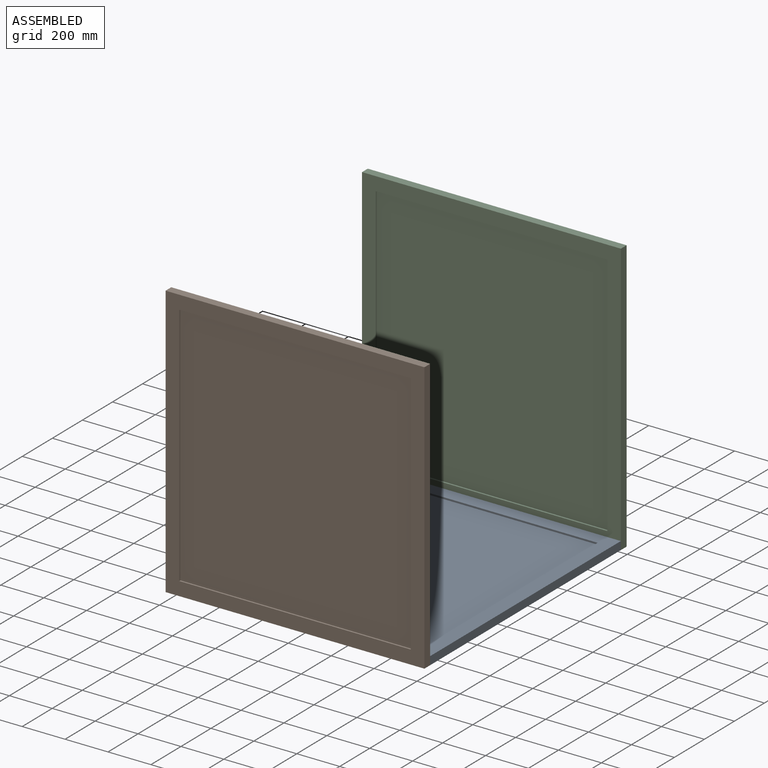
[diagram: assembled view]
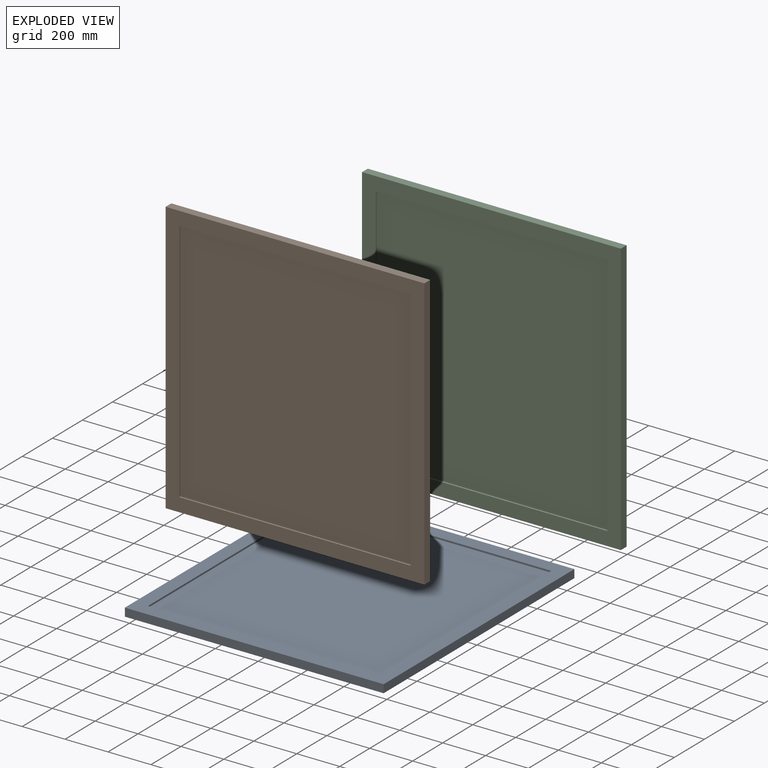
[diagram: exploded view]
GUIDED TOUR — MATED ASSEMBLY WITH SUBASSEMBLIES (Onshape document 404972811c8fb933fd3bb6b1, AutoMate assembly 404972811c8fb933fd3bb6b1_041af4c6ded8f448869e7025_c37ba7de317af0f1ff9ef1fa_default)

This assembly has 18 component occurrences arranged in 3 top-level units: 0 individual components plus 3 subassemblies (S0, S1, S2). The tour has two levels: first the top level, where each subassembly is treated as one rigid unit; then each subassembly is toured internally in its own section (nesting deeper than one subassembly level is flattened into its subassembly's section).

Components are labeled P0..P17 across the whole record; subassembly units are labeled S0..S2. A mate is a constraint between two units; its type names the relative motion it leaves free:
  PLANAR — leaves sliding in the plane through the listed point (normal = the listed direction) and rotation about that normal free.
Axis/direction vectors are unit vectors and 'through' points are millimeter coordinates, both in the assembly's world frame.

TOP-LEVEL MATES (between units; each subassembly's internal mates are listed in its own section)
  1. PLANAR "Planar 3": S1 <-> S0, direction (0.000, 0.000, -1.000) through (-804.08, -1330.18, 160.51) mm
  2. PLANAR "Planar 5": S0 <-> S2, direction (0.000, 1.000, 0.000) through (-804.08, -41.13, 179.56) mm
  3. PLANAR "Planar 4": S0 <-> S1, direction (0.000, -1.000, 0.000) through (-804.08, -1311.13, 179.56) mm
  4. PLANAR "Planar 1": S0 <-> S2, direction (1.000, 0.000, 0.000) through (-200.83, -676.13, 179.56) mm
  5. PLANAR "Planar 2": S0 <-> S1, direction (1.000, 0.000, 0.000) through (-200.83, -676.13, 179.56) mm
  6. PLANAR "Planar 6": S2 <-> S0, direction (0.000, 0.000, -1.000) through (-804.08, -22.08, 160.51) mm

TOP-LEVEL ASSEMBLY ORDER
  1. S2 — the base component [order verified]
  2. S0 [order verified]
  3. S1 [order verified]
Order-tag legend:
  [order verified] — this step's position reverses a verified removal order: the component was checked to insert without passing through the ones already placed.

Of the 18 component occurrences, 18 carry the full construction recipe — the FeatureScript program that regenerates the part's solid from scratch; the rest are supplied as boundary geometry only. Each toured unit is shown spotlighted twice — assembled, then exploded with a leader line back to its socket (green = recipe-attached component, orange = geometry-only, blue = subassembly unit; the rest desaturated gray).
NOTE — document 2 of 3 of this assembly tour. The two overview renders and the header above are repeated from document 1; the component sections below continue where the previous document stopped.
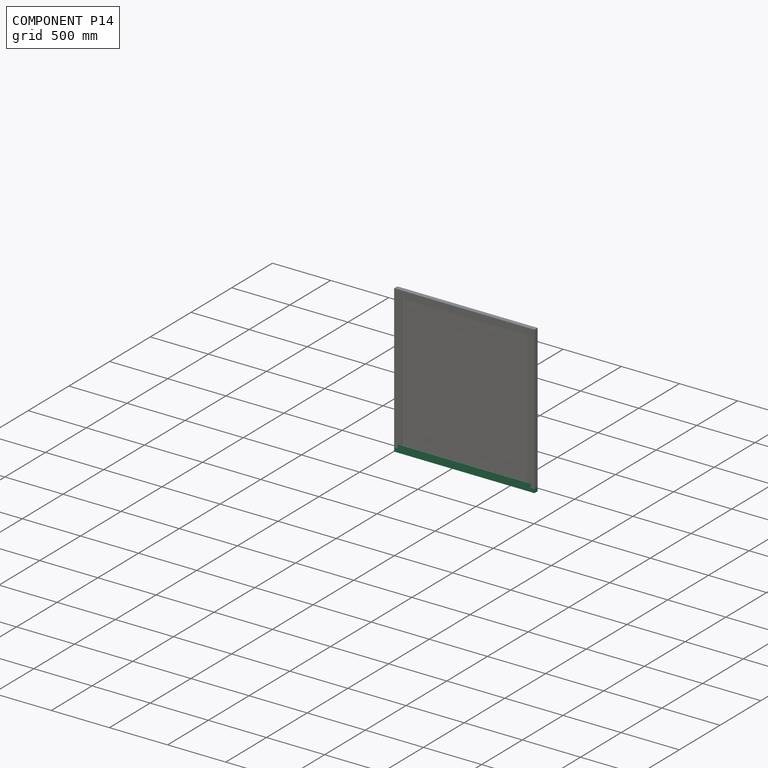
[diagram: component P14 — assembled]
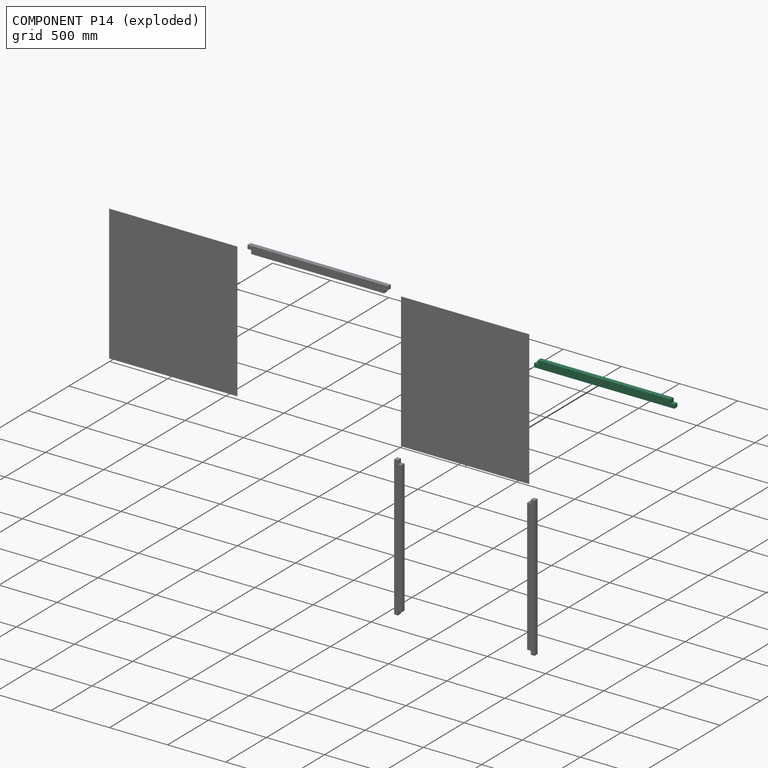
[diagram: component P14 — exploded]
COMPONENT P14 — recipe-attached (CADFS 00307400, mesh-verified: the recipe's output STEP matches this component's geometry to below the mesh-comparison resolution (tessellation chordal tolerance ~1.81 mm)).
Held by: PLANAR mate "Planar 3" to P5; PLANAR mate "Planar 8" to P16; PLANAR mate "Planar 1" to P5; PLANAR mate "Planar 2" to P5; PLANAR mate "Planar 8" to P16; PLANAR mate "Planar 2" to P5; PLANAR mate "Planar 3" to P5; PLANAR mate "Planar 1" to P5.
Construction recipe (FeatureScript — the CAD program that rebuilds this solid; sketch coordinates are in the units given by the * unit suffixes, e.g. mm):

FeatureScript 1511;
import(path : "onshape/std/geometry.fs", version : "1511.0");
import(path : "onshape/std/common.fs", version : "1511.0");
const mm = millimeter;
const VERTEX = EntityType.VERTEX;
const EDGE = EntityType.EDGE;
const FACE = EntityType.FACE;
const BODY = EntityType.BODY;
function v(x, y){return vector(x, y);}
function OD(order){return orderDisambiguation(order);}
function OSD(set){return originalSetDisambiguation(set);}
function TD(topology){return topologyDisambiguation(topology);}
function TDD(query){return trueDependencyDisambiguation(query);}
function sQuery(a, b, c) {return sketchEntityQuery(a, b, c);}

annotation { "Feature Type Name" : "Feature", "Feature Type Description" : "" }
export const myFeature = defineFeature(function(context is Context, id is Id, definition is map)
    precondition{}
    {
        {
            var Q0;
            Q0=qCreatedBy(makeId("Front.planeOp"),FACE);
            var sketch = newSketch(context, id + "F0", { "sketchPlane" : qUnion([Q0])});
            skLineSegment(sketch, "E0.bottom", {"start": v(19.05, -31.75) * mm, "end": v(-19.05, -31.75) * mm});
            skLineSegment(sketch, "E0.top", {"start": v(19.05, 31.75) * mm, "end": v(-19.05, 31.75) * mm});
            skLineSegment(sketch, "E0.left", {"start": v(19.05, -31.75) * mm, "end": v(19.05, 31.75) * mm});
            skLineSegment(sketch, "E0.right", {"start": v(-19.05, -31.75) * mm, "end": v(-19.05, 31.75) * mm});
            skPoint(sketch, "E0.middle", {"position": v(0, 0) * mm});
            skLineSegment(sketch, "E1.bottom", {"start": v(11.11, 21.59) * mm, "end": v(7.94, 21.59) * mm});
            skLineSegment(sketch, "E1.top", {"start": v(11.11, 31.75) * mm, "end": v(7.94, 31.75) * mm});
            skLineSegment(sketch, "E1.left", {"start": v(11.11, 21.59) * mm, "end": v(11.11, 31.75) * mm});
            skLineSegment(sketch, "E1.right", {"start": v(7.94, 21.59) * mm, "end": v(7.94, 31.75) * mm});
            skPoint(sketch, "E1.middle", {"position": v(9.53, 26.67) * mm});
            skLineSegment(sketch, "E2.bottom", {"start": v(-7.94, 21.59) * mm, "end": v(-11.11, 21.59) * mm});
            skLineSegment(sketch, "E2.top", {"start": v(-7.94, 31.75) * mm, "end": v(-11.11, 31.75) * mm});
            skLineSegment(sketch, "E2.left", {"start": v(-7.94, 21.59) * mm, "end": v(-7.94, 31.75) * mm});
            skLineSegment(sketch, "E2.right", {"start": v(-11.11, 21.59) * mm, "end": v(-11.11, 31.75) * mm});
            skPoint(sketch, "E2.middle", {"position": v(-9.53, 26.67) * mm});
            skSolve(sketch);
        }
        {
            var Q0;
            Q0=makeQuery(id+"F0.imprint","IMPRINT",FACE,{"disambiguationData":[TD([[makeQuery(id+"F0.imprint","IMPRINT",EDGE,{"derivedFrom":sQuery(id+"F0.wireOp",EDGE,"E0.bottom")}),-1.0]])]});
            extrude(context, id + "F1", {"entities" : qUnion([Q0]), "endBound" : BoundingType.SYMMETRIC, "depth" : 1206.5 * mm});
        }
        {
            var Q0;
            Q0=makeQuery(id+"F1.opExtrude","SWEPT_FACE",FACE,{"disambiguationData":[OSD([sQuery(id+"F0.wireOp",EDGE,"E0.right")])]});
            var sketch = newSketch(context, id + "F2", { "sketchPlane" : qUnion([Q0])});
            skLineSegment(sketch, "E3", {"start": v(0, 31.75) * mm, "end": v(0, -31.75) * mm, "construction": true});
            skPoint(sketch, "E3.endSnap0", {"position": v(0, -31.75) * mm});
            skLineSegment(sketch, "E4.bottom", {"start": v(603.25, 31.75) * mm, "end": v(571.5, 31.75) * mm});
            skLineSegment(sketch, "E4.top", {"start": v(603.25, 0) * mm, "end": v(571.5, 0) * mm});
            skLineSegment(sketch, "E4.left", {"start": v(603.25, 31.75) * mm, "end": v(603.25, 0) * mm});
            skLineSegment(sketch, "E4.right", {"start": v(571.5, 31.75) * mm, "end": v(571.5, 0) * mm});
            skLineSegment(sketch, "E5.MirrorCS", {"start": v(-603.25, 31.75) * mm, "end": v(-571.5, 31.75) * mm});
            skLineSegment(sketch, "E6.MirrorCS", {"start": v(-603.25, 0) * mm, "end": v(-571.5, 0) * mm});
            skLineSegment(sketch, "E7.MirrorCS", {"start": v(-603.25, 31.75) * mm, "end": v(-603.25, 0) * mm});
            skLineSegment(sketch, "E8.MirrorCS", {"start": v(-571.5, 31.75) * mm, "end": v(-571.5, 0) * mm});
            skSolve(sketch);
        }
        {
            var Q0;
            Q0 = qSketchRegion(id + "F2", true);
            extrude(context, id + "F3", {"entities" : qUnion([Q0]), "operationType" : NewBodyOperationType.REMOVE, "endBound" : BoundingType.THROUGH_ALL, "oppositeDirection" : true, "depth" : 25.4 * mm});
        }
    });
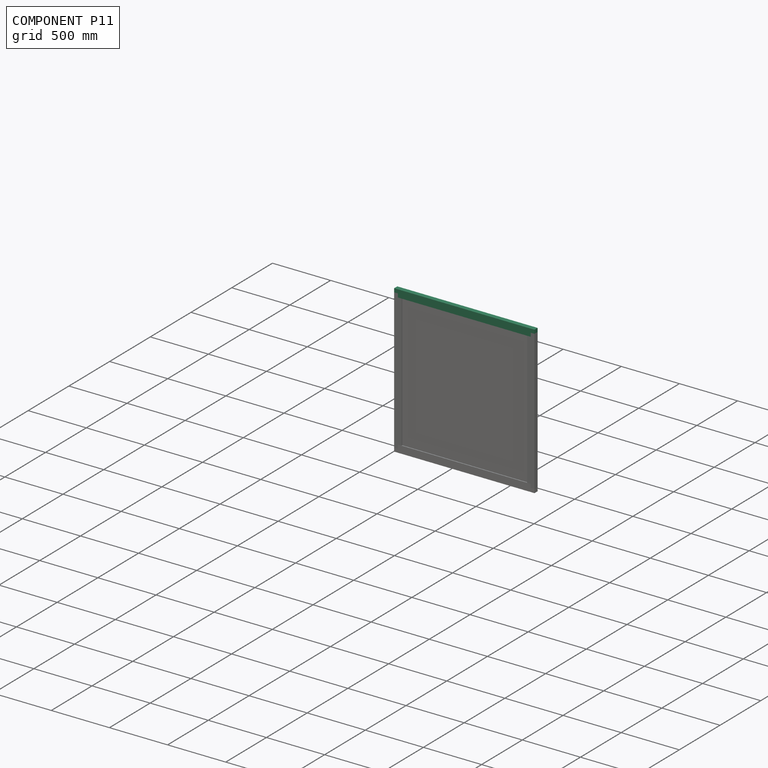
[diagram: component P11 — assembled]
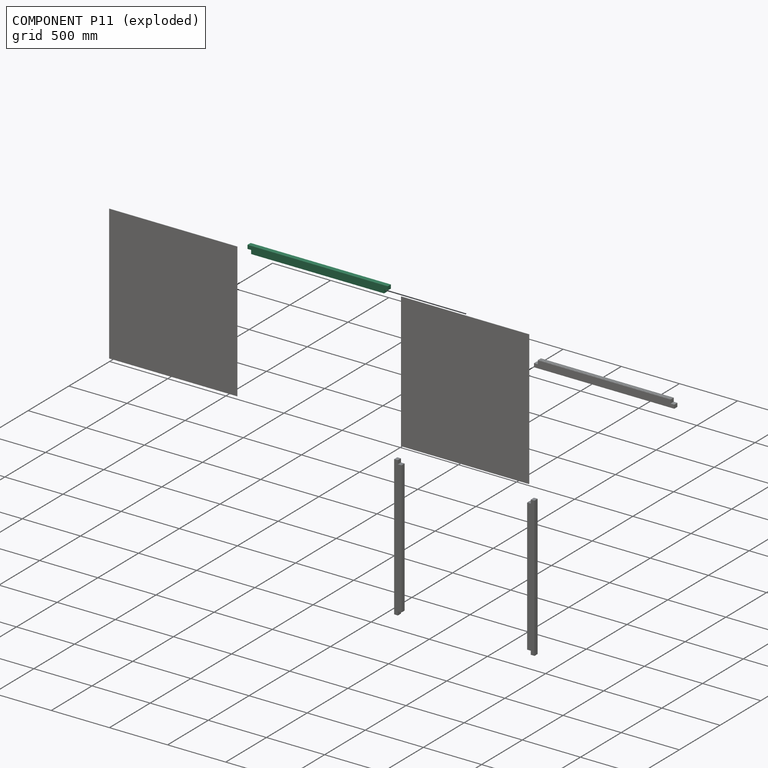
[diagram: component P11 — exploded]
COMPONENT P11 — recipe-attached (CADFS 00307400, mesh-verified: the recipe's output STEP matches this component's geometry to below the mesh-comparison resolution (tessellation chordal tolerance ~1.81 mm)).
Held by: PLANAR mate "Planar 4" to P5; PLANAR mate "Planar 6" to P5; PLANAR mate "Planar 7" to P16; PLANAR mate "Planar 10" to P2; PLANAR mate "Planar 5" to P5; PLANAR mate "Planar 9" to P16; PLANAR mate "Planar 4" to P5; PLANAR mate "Planar 7" to P16; PLANAR mate "Planar 6" to P5; PLANAR mate "Planar 9" to P16; PLANAR mate "Planar 10" to P2; PLANAR mate "Planar 5" to P5.
Construction recipe (FeatureScript — the CAD program that rebuilds this solid; sketch coordinates are in the units given by the * unit suffixes, e.g. mm):

FeatureScript 1511;
import(path : "onshape/std/geometry.fs", version : "1511.0");
import(path : "onshape/std/common.fs", version : "1511.0");
const mm = millimeter;
const VERTEX = EntityType.VERTEX;
const EDGE = EntityType.EDGE;
const FACE = EntityType.FACE;
const BODY = EntityType.BODY;
function v(x, y){return vector(x, y);}
function OD(order){return orderDisambiguation(order);}
function OSD(set){return originalSetDisambiguation(set);}
function TD(topology){return topologyDisambiguation(topology);}
function TDD(query){return trueDependencyDisambiguation(query);}
function sQuery(a, b, c) {return sketchEntityQuery(a, b, c);}

annotation { "Feature Type Name" : "Feature", "Feature Type Description" : "" }
export const myFeature = defineFeature(function(context is Context, id is Id, definition is map)
    precondition{}
    {
        {
            var Q0;
            Q0=qCreatedBy(makeId("Front.planeOp"),FACE);
            var sketch = newSketch(context, id + "F0", { "sketchPlane" : qUnion([Q0])});
            skLineSegment(sketch, "E0.bottom", {"start": v(19.05, -31.75) * mm, "end": v(-19.05, -31.75) * mm});
            skLineSegment(sketch, "E0.top", {"start": v(19.05, 31.75) * mm, "end": v(-19.05, 31.75) * mm});
            skLineSegment(sketch, "E0.left", {"start": v(19.05, -31.75) * mm, "end": v(19.05, 31.75) * mm});
            skLineSegment(sketch, "E0.right", {"start": v(-19.05, -31.75) * mm, "end": v(-19.05, 31.75) * mm});
            skPoint(sketch, "E0.middle", {"position": v(0, 0) * mm});
            skLineSegment(sketch, "E1.bottom", {"start": v(11.11, 21.59) * mm, "end": v(7.94, 21.59) * mm});
            skLineSegment(sketch, "E1.top", {"start": v(11.11, 31.75) * mm, "end": v(7.94, 31.75) * mm});
            skLineSegment(sketch, "E1.left", {"start": v(11.11, 21.59) * mm, "end": v(11.11, 31.75) * mm});
            skLineSegment(sketch, "E1.right", {"start": v(7.94, 21.59) * mm, "end": v(7.94, 31.75) * mm});
            skPoint(sketch, "E1.middle", {"position": v(9.53, 26.67) * mm});
            skLineSegment(sketch, "E2.bottom", {"start": v(-7.94, 21.59) * mm, "end": v(-11.11, 21.59) * mm});
            skLineSegment(sketch, "E2.top", {"start": v(-7.94, 31.75) * mm, "end": v(-11.11, 31.75) * mm});
            skLineSegment(sketch, "E2.left", {"start": v(-7.94, 21.59) * mm, "end": v(-7.94, 31.75) * mm});
            skLineSegment(sketch, "E2.right", {"start": v(-11.11, 21.59) * mm, "end": v(-11.11, 31.75) * mm});
            skPoint(sketch, "E2.middle", {"position": v(-9.53, 26.67) * mm});
            skSolve(sketch);
        }
        {
            var Q0;
            Q0=makeQuery(id+"F0.imprint","IMPRINT",FACE,{"disambiguationData":[TD([[makeQuery(id+"F0.imprint","IMPRINT",EDGE,{"derivedFrom":sQuery(id+"F0.wireOp",EDGE,"E0.bottom")}),-1.0]])]});
            extrude(context, id + "F1", {"entities" : qUnion([Q0]), "endBound" : BoundingType.SYMMETRIC, "depth" : 1206.5 * mm});
        }
        {
            var Q0;
            Q0=makeQuery(id+"F1.opExtrude","SWEPT_FACE",FACE,{"disambiguationData":[OSD([sQuery(id+"F0.wireOp",EDGE,"E0.right")])]});
            var sketch = newSketch(context, id + "F2", { "sketchPlane" : qUnion([Q0])});
            skLineSegment(sketch, "E3", {"start": v(0, 31.75) * mm, "end": v(0, -31.75) * mm, "construction": true});
            skPoint(sketch, "E3.endSnap0", {"position": v(0, -31.75) * mm});
            skLineSegment(sketch, "E4.bottom", {"start": v(603.25, 31.75) * mm, "end": v(571.5, 31.75) * mm});
            skLineSegment(sketch, "E4.top", {"start": v(603.25, 0) * mm, "end": v(571.5, 0) * mm});
            skLineSegment(sketch, "E4.left", {"start": v(603.25, 31.75) * mm, "end": v(603.25, 0) * mm});
            skLineSegment(sketch, "E4.right", {"start": v(571.5, 31.75) * mm, "end": v(571.5, 0) * mm});
            skLineSegment(sketch, "E5.MirrorCS", {"start": v(-603.25, 31.75) * mm, "end": v(-571.5, 31.75) * mm});
            skLineSegment(sketch, "E6.MirrorCS", {"start": v(-603.25, 0) * mm, "end": v(-571.5, 0) * mm});
            skLineSegment(sketch, "E7.MirrorCS", {"start": v(-603.25, 31.75) * mm, "end": v(-603.25, 0) * mm});
            skLineSegment(sketch, "E8.MirrorCS", {"start": v(-571.5, 31.75) * mm, "end": v(-571.5, 0) * mm});
            skSolve(sketch);
        }
        {
            var Q0;
            Q0 = qSketchRegion(id + "F2", true);
            extrude(context, id + "F3", {"entities" : qUnion([Q0]), "operationType" : NewBodyOperationType.REMOVE, "endBound" : BoundingType.THROUGH_ALL, "oppositeDirection" : true, "depth" : 25.4 * mm});
        }
    });
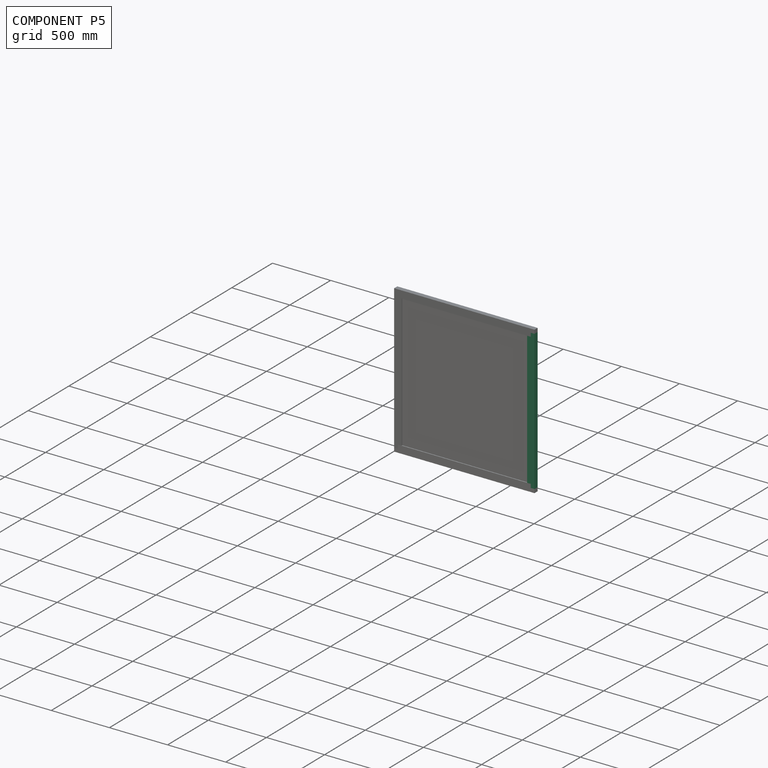
[diagram: component P5 — assembled]
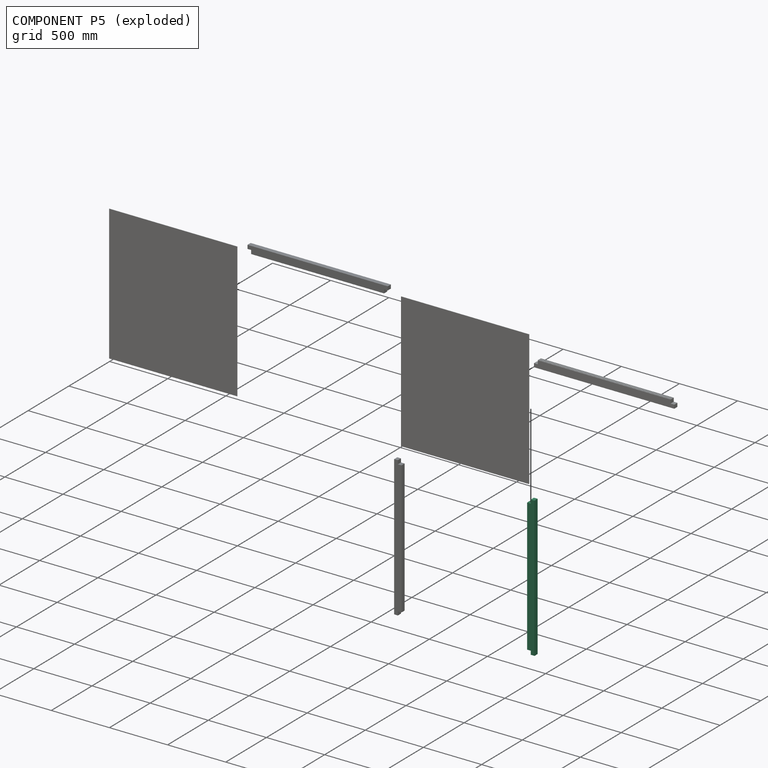
[diagram: component P5 — exploded]
COMPONENT P5 — recipe-attached (CADFS 00307400, mesh-verified: the recipe's output STEP matches this component's geometry to below the mesh-comparison resolution (tessellation chordal tolerance ~1.81 mm)).
Held by: PLANAR mate "Planar 4" to P11; PLANAR mate "Planar 6" to P11; PLANAR mate "Planar 3" to P14; PLANAR mate "Planar 14" to P2; PLANAR mate "Planar 15" to P6; PLANAR mate "Planar 5" to P11; PLANAR mate "Planar 1" to P14; PLANAR mate "Planar 2" to P14; PLANAR mate "Planar 4" to P11; PLANAR mate "Planar 14" to P2; PLANAR mate "Planar 15" to P6; PLANAR mate "Planar 6" to P11; PLANAR mate "Planar 2" to P14; PLANAR mate "Planar 3" to P14; PLANAR mate "Planar 1" to P14; PLANAR mate "Planar 5" to P11.
Construction recipe (FeatureScript — the CAD program that rebuilds this solid; sketch coordinates are in the units given by the * unit suffixes, e.g. mm):

FeatureScript 1511;
import(path : "onshape/std/geometry.fs", version : "1511.0");
import(path : "onshape/std/common.fs", version : "1511.0");
const mm = millimeter;
const VERTEX = EntityType.VERTEX;
const EDGE = EntityType.EDGE;
const FACE = EntityType.FACE;
const BODY = EntityType.BODY;
function v(x, y){return vector(x, y);}
function OD(order){return orderDisambiguation(order);}
function OSD(set){return originalSetDisambiguation(set);}
function TD(topology){return topologyDisambiguation(topology);}
function TDD(query){return trueDependencyDisambiguation(query);}
function sQuery(a, b, c) {return sketchEntityQuery(a, b, c);}

annotation { "Feature Type Name" : "Feature", "Feature Type Description" : "" }
export const myFeature = defineFeature(function(context is Context, id is Id, definition is map)
    precondition{}
    {
        {
            var Q0;
            Q0=qCreatedBy(makeId("Front.planeOp"),FACE);
            var sketch = newSketch(context, id + "F0", { "sketchPlane" : qUnion([Q0])});
            skLineSegment(sketch, "E0.bottom", {"start": v(19.05, -31.75) * mm, "end": v(-19.05, -31.75) * mm});
            skLineSegment(sketch, "E0.top", {"start": v(19.05, 31.75) * mm, "end": v(-19.05, 31.75) * mm});
            skLineSegment(sketch, "E0.left", {"start": v(19.05, -31.75) * mm, "end": v(19.05, 31.75) * mm});
            skLineSegment(sketch, "E0.right", {"start": v(-19.05, -31.75) * mm, "end": v(-19.05, 31.75) * mm});
            skPoint(sketch, "E0.middle", {"position": v(0, 0) * mm});
            skLineSegment(sketch, "E1.bottom", {"start": v(11.11, 21.59) * mm, "end": v(7.94, 21.59) * mm});
            skLineSegment(sketch, "E1.top", {"start": v(11.11, 31.75) * mm, "end": v(7.94, 31.75) * mm});
            skLineSegment(sketch, "E1.left", {"start": v(11.11, 21.59) * mm, "end": v(11.11, 31.75) * mm});
            skLineSegment(sketch, "E1.right", {"start": v(7.94, 21.59) * mm, "end": v(7.94, 31.75) * mm});
            skPoint(sketch, "E1.middle", {"position": v(9.53, 26.67) * mm});
            skLineSegment(sketch, "E2.bottom", {"start": v(-7.94, 21.59) * mm, "end": v(-11.11, 21.59) * mm});
            skLineSegment(sketch, "E2.top", {"start": v(-7.94, 31.75) * mm, "end": v(-11.11, 31.75) * mm});
            skLineSegment(sketch, "E2.left", {"start": v(-7.94, 21.59) * mm, "end": v(-7.94, 31.75) * mm});
            skLineSegment(sketch, "E2.right", {"start": v(-11.11, 21.59) * mm, "end": v(-11.11, 31.75) * mm});
            skPoint(sketch, "E2.middle", {"position": v(-9.53, 26.67) * mm});
            skSolve(sketch);
        }
        {
            var Q0;
            Q0=makeQuery(id+"F0.imprint","IMPRINT",FACE,{"disambiguationData":[TD([[makeQuery(id+"F0.imprint","IMPRINT",EDGE,{"derivedFrom":sQuery(id+"F0.wireOp",EDGE,"E0.bottom")}),-1.0]])]});
            extrude(context, id + "F1", {"entities" : qUnion([Q0]), "endBound" : BoundingType.SYMMETRIC, "depth" : 1206.5 * mm});
        }
        {
            var Q0;
            Q0=makeQuery(id+"F1.opExtrude","SWEPT_FACE",FACE,{"disambiguationData":[OSD([sQuery(id+"F0.wireOp",EDGE,"E0.right")])]});
            var sketch = newSketch(context, id + "F2", { "sketchPlane" : qUnion([Q0])});
            skLineSegment(sketch, "E3", {"start": v(0, 31.75) * mm, "end": v(0, -31.75) * mm, "construction": true});
            skPoint(sketch, "E3.endSnap0", {"position": v(0, -31.75) * mm});
            skLineSegment(sketch, "E4.bottom", {"start": v(603.25, 31.75) * mm, "end": v(571.5, 31.75) * mm});
            skLineSegment(sketch, "E4.top", {"start": v(603.25, 0) * mm, "end": v(571.5, 0) * mm});
            skLineSegment(sketch, "E4.left", {"start": v(603.25, 31.75) * mm, "end": v(603.25, 0) * mm});
            skLineSegment(sketch, "E4.right", {"start": v(571.5, 31.75) * mm, "end": v(571.5, 0) * mm});
            skLineSegment(sketch, "E5.MirrorCS", {"start": v(-603.25, 31.75) * mm, "end": v(-571.5, 31.75) * mm});
            skLineSegment(sketch, "E6.MirrorCS", {"start": v(-603.25, 0) * mm, "end": v(-571.5, 0) * mm});
            skLineSegment(sketch, "E7.MirrorCS", {"start": v(-603.25, 31.75) * mm, "end": v(-603.25, 0) * mm});
            skLineSegment(sketch, "E8.MirrorCS", {"start": v(-571.5, 31.75) * mm, "end": v(-571.5, 0) * mm});
            skSolve(sketch);
        }
        {
            var Q0;
            Q0 = qSketchRegion(id + "F2", true);
            extrude(context, id + "F3", {"entities" : qUnion([Q0]), "operationType" : NewBodyOperationType.REMOVE, "endBound" : BoundingType.THROUGH_ALL, "oppositeDirection" : true, "depth" : 25.4 * mm});
        }
    });
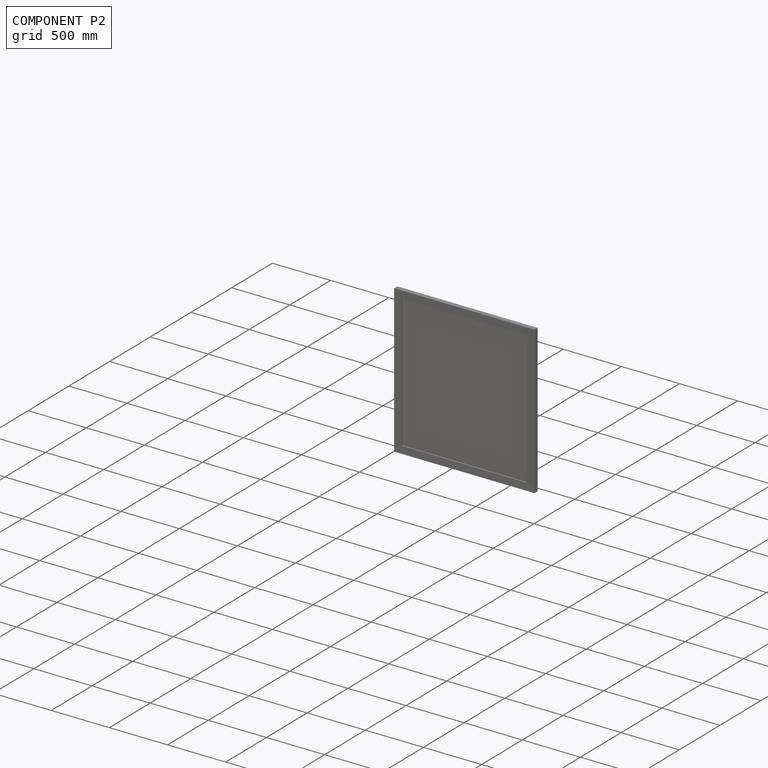
[diagram: component P2 — assembled]
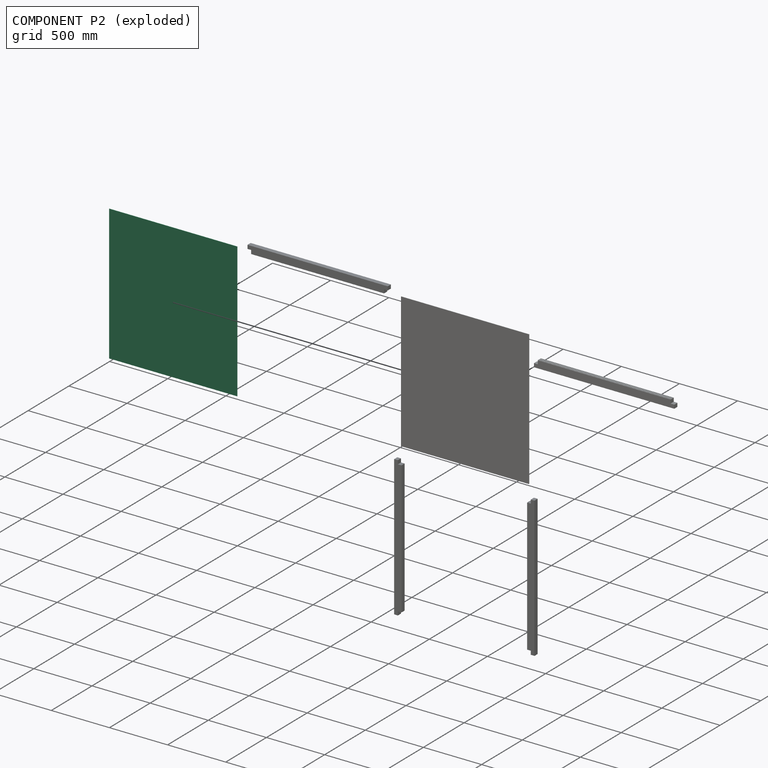
[diagram: component P2 — exploded]
COMPONENT P2 — recipe-attached (CADFS 00307407, mesh-verified: the recipe's output STEP matches this component's geometry to below the mesh-comparison resolution (tessellation chordal tolerance ~2.4 mm)).
Held by: PLANAR mate "Planar 11" to P6; PLANAR mate "Planar 12" to P16; PLANAR mate "Planar 10" to P11; PLANAR mate "Planar 14" to P5; PLANAR mate "Planar 14" to P5; PLANAR mate "Planar 10" to P11; PLANAR mate "Planar 11" to P6; PLANAR mate "Planar 12" to P16.
Construction recipe (FeatureScript — the CAD program that rebuilds this solid; sketch coordinates are in the units given by the * unit suffixes, e.g. mm):

FeatureScript 1511;
import(path : "onshape/std/geometry.fs", version : "1511.0");
import(path : "onshape/std/common.fs", version : "1511.0");
const mm = millimeter;
const VERTEX = EntityType.VERTEX;
const EDGE = EntityType.EDGE;
const FACE = EntityType.FACE;
const BODY = EntityType.BODY;
function v(x, y){return vector(x, y);}
function OD(order){return orderDisambiguation(order);}
function OSD(set){return originalSetDisambiguation(set);}
function TD(topology){return topologyDisambiguation(topology);}
function TDD(query){return trueDependencyDisambiguation(query);}
function sQuery(a, b, c) {return sketchEntityQuery(a, b, c);}

annotation { "Feature Type Name" : "Feature", "Feature Type Description" : "" }
export const myFeature = defineFeature(function(context is Context, id is Id, definition is map)
    precondition{}
    {
        {
            var Q0;
            Q0=qCreatedBy(makeId("Front.planeOp"),FACE);
            var sketch = newSketch(context, id + "F0", { "sketchPlane" : qUnion([Q0])});
            skLineSegment(sketch, "E0.bottom", {"start": v(581.66, 549.9) * mm, "end": v(-581.66, 549.9) * mm});
            skLineSegment(sketch, "E0.top", {"start": v(581.66, -549.9) * mm, "end": v(-581.66, -549.9) * mm});
            skLineSegment(sketch, "E0.left", {"start": v(581.66, 549.9) * mm, "end": v(581.66, -549.9) * mm});
            skLineSegment(sketch, "E0.right", {"start": v(-581.66, 549.9) * mm, "end": v(-581.66, -549.9) * mm});
            skPoint(sketch, "E0.middle", {"position": v(0, 0) * mm});
            skSolve(sketch);
        }
        {
            var Q0;
            Q0=qSketchRegion(id+"F0",true);
            extrude(context, id + "F1", {"entities" : qUnion([Q0]), "depth" : 3.17 * mm});
        }
    });
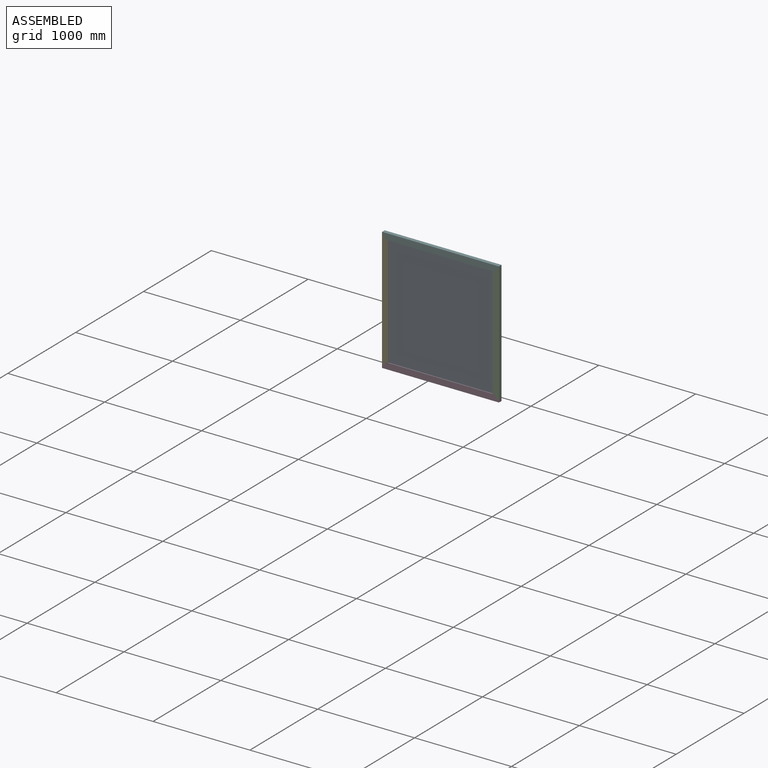
[diagram: subassembly S2 — assembled view]
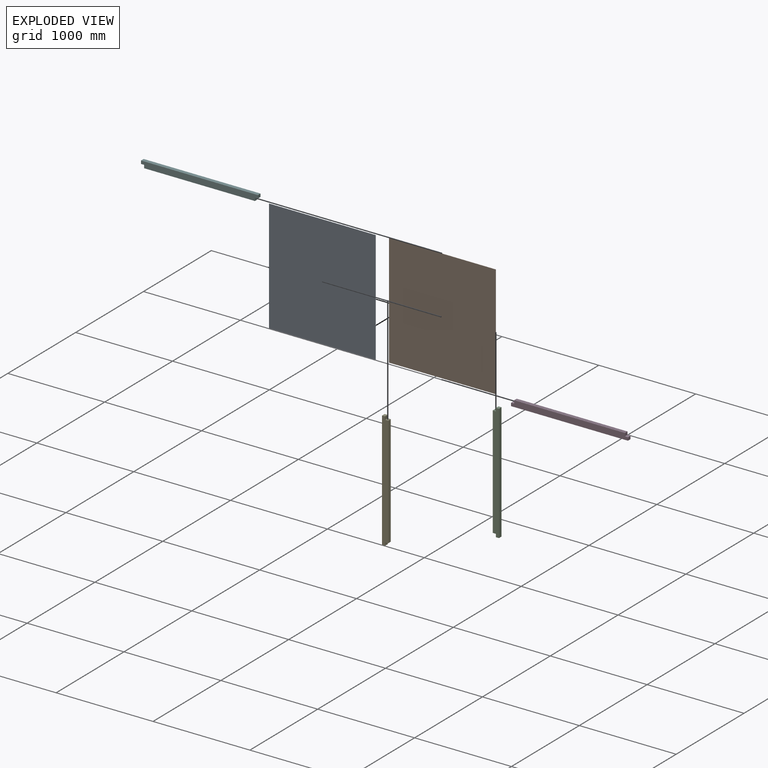
[diagram: subassembly S2 — exploded view]
SUBASSEMBLY S2 TOUR — 6 components, shown here in isolation at its own camera.

INTERNAL MATES
  1. PLANAR "Planar 4": P13 <-> P8, direction (1.000, 0.000, 0.000) through (-200.83, -22.08, 1414.63) mm
  2. PLANAR "Planar 11": P4 <-> P7, direction (0.000, 0.000, 1.000) through (-804.08, -31.61, 1377.17) mm
  3. PLANAR "Planar 13": P10 <-> P4, direction (0.000, -1.000, 0.000) through (-1348.91, -30.02, 795.51) mm
  4. PLANAR "Planar 6": P13 <-> P8, direction (0.000, 0.000, -1.000) through (-216.70, -22.08, 1398.76) mm
  5. PLANAR "Planar 3": P9 <-> P8, direction (0.000, -1.000, 0.000) through (-804.08, -41.13, 191.83) mm
  6. PLANAR "Planar 7": P10 <-> P13, direction (-1.000, 0.000, 0.000) through (-1407.33, -22.08, 795.51) mm
  7. PLANAR "Planar 12": P7 <-> P10, direction (0.000, 1.000, 0.000) through (-804.08, -10.97, 213.85) mm
  8. PLANAR "Planar 10": P7 <-> P13, direction (0.000, 0.000, 1.000) through (-804.08, -12.56, 1377.17) mm
  9. PLANAR "Planar 14": P7 <-> P8, direction (1.000, 0.000, 0.000) through (-254.17, -12.56, 795.51) mm
  10. PLANAR "Planar 15": P8 <-> P4, direction (-1.000, 0.000, 0.000) through (-254.17, -31.61, 795.51) mm
  11. PLANAR "Planar 8": P10 <-> P9, direction (0.000, 0.000, -1.000) through (-1391.45, -22.08, 192.26) mm
  12. PLANAR "Planar 5": P8 <-> P13, direction (0.000, -1.000, 0.000) through (-232.15, -41.13, 795.51) mm
  13. PLANAR "Planar 9": P13 <-> P10, direction (0.000, 1.000, 0.000) through (-804.08, -3.03, 1399.19) mm
  14. PLANAR "Planar 1": P9 <-> P8, direction (0.000, 0.000, 1.000) through (-216.70, -22.08, 192.26) mm
  15. PLANAR "Planar 2": P9 <-> P8, direction (1.000, 0.000, 0.000) through (-200.83, -22.08, 176.38) mm
  16. PLANAR "Planar 7": P10 <-> P13, direction (-1.000, 0.000, 0.000) through (-1407.33, -22.08, 795.51) mm
  17. PLANAR "Planar 9": P13 <-> P10, direction (0.000, 1.000, 0.000) through (-804.08, -3.03, 1399.19) mm
  18. PLANAR "Planar 1": P9 <-> P8, direction (0.000, 0.000, 1.000) through (-216.70, -22.08, 192.26) mm
  19. PLANAR "Planar 13": P10 <-> P4, direction (0.000, -1.000, 0.000) through (-1348.91, -30.02, 795.51) mm
  20. PLANAR "Planar 15": P8 <-> P4, direction (-1.000, 0.000, 0.000) through (-254.17, -31.61, 795.51) mm
  21. PLANAR "Planar 3": P9 <-> P8, direction (0.000, -1.000, 0.000) through (-804.08, -41.13, 191.83) mm
  22. PLANAR "Planar 11": P4 <-> P7, direction (0.000, 0.000, 1.000) through (-804.08, -31.61, 1377.17) mm
  23. PLANAR "Planar 8": P10 <-> P9, direction (0.000, 0.000, -1.000) through (-1391.45, -22.08, 192.26) mm
  24. PLANAR "Planar 10": P7 <-> P13, direction (0.000, 0.000, 1.000) through (-804.08, -12.56, 1377.17) mm
  25. PLANAR "Planar 5": P8 <-> P13, direction (0.000, -1.000, 0.000) through (-232.15, -41.13, 795.51) mm
  26. PLANAR "Planar 6": P13 <-> P8, direction (0.000, 0.000, -1.000) through (-216.70, -22.08, 1398.76) mm
  27. PLANAR "Planar 4": P13 <-> P8, direction (1.000, 0.000, 0.000) through (-200.83, -22.08, 1414.63) mm
  28. PLANAR "Planar 14": P7 <-> P8, direction (1.000, 0.000, 0.000) through (-254.17, -12.56, 795.51) mm
  29. PLANAR "Planar 12": P7 <-> P10, direction (0.000, 1.000, 0.000) through (-804.08, -10.97, 213.85) mm
  30. PLANAR "Planar 2": P9 <-> P8, direction (1.000, 0.000, 0.000) through (-200.83, -22.08, 176.38) mm

ASSEMBLY ORDER (within the subassembly)
  1. P7 — the base component [order verified]
  2. P4 [order verified]
  3. P8 [order verified]
  4. P10 [order verified]
  5. P9 [order verified]
  6. P13 [order verified]
Order-tag legend:
  [order verified] — this step's position reverses a verified removal order: the component was checked to insert without passing through the ones already placed.
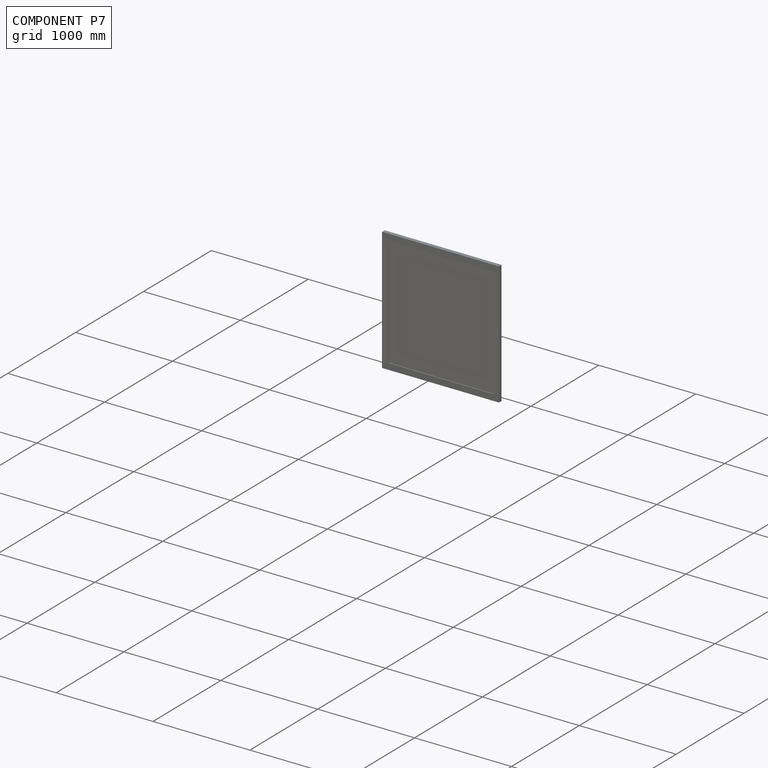
[diagram: component P7 — assembled]
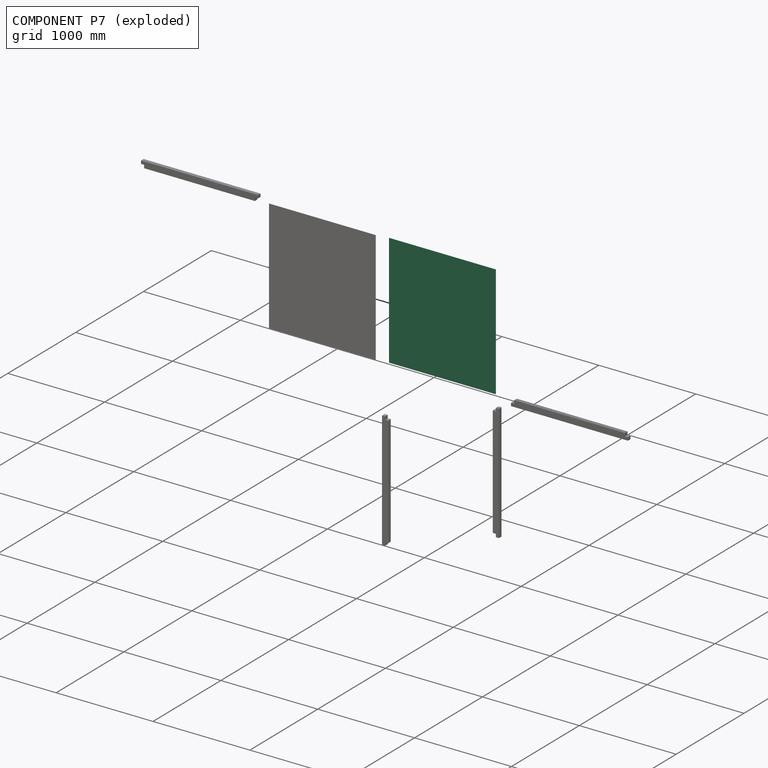
[diagram: component P7 — exploded]
COMPONENT P7 — recipe-attached (CADFS 00307407, mesh-verified: the recipe's output STEP matches this component's geometry to below the mesh-comparison resolution (tessellation chordal tolerance ~2.4 mm)).
Held by: PLANAR mate "Planar 11" to P4; PLANAR mate "Planar 12" to P10; PLANAR mate "Planar 10" to P13; PLANAR mate "Planar 14" to P8; PLANAR mate "Planar 11" to P4; PLANAR mate "Planar 10" to P13; PLANAR mate "Planar 14" to P8; PLANAR mate "Planar 12" to P10.
Construction recipe (FeatureScript — the CAD program that rebuilds this solid; sketch coordinates are in the units given by the * unit suffixes, e.g. mm):

FeatureScript 1511;
import(path : "onshape/std/geometry.fs", version : "1511.0");
import(path : "onshape/std/common.fs", version : "1511.0");
const mm = millimeter;
const VERTEX = EntityType.VERTEX;
const EDGE = EntityType.EDGE;
const FACE = EntityType.FACE;
const BODY = EntityType.BODY;
function v(x, y){return vector(x, y);}
function OD(order){return orderDisambiguation(order);}
function OSD(set){return originalSetDisambiguation(set);}
function TD(topology){return topologyDisambiguation(topology);}
function TDD(query){return trueDependencyDisambiguation(query);}
function sQuery(a, b, c) {return sketchEntityQuery(a, b, c);}

annotation { "Feature Type Name" : "Feature", "Feature Type Description" : "" }
export const myFeature = defineFeature(function(context is Context, id is Id, definition is map)
    precondition{}
    {
        {
            var Q0;
            Q0=qCreatedBy(makeId("Front.planeOp"),FACE);
            var sketch = newSketch(context, id + "F0", { "sketchPlane" : qUnion([Q0])});
            skLineSegment(sketch, "E0.bottom", {"start": v(581.66, 549.9) * mm, "end": v(-581.66, 549.9) * mm});
            skLineSegment(sketch, "E0.top", {"start": v(581.66, -549.9) * mm, "end": v(-581.66, -549.9) * mm});
            skLineSegment(sketch, "E0.left", {"start": v(581.66, 549.9) * mm, "end": v(581.66, -549.9) * mm});
            skLineSegment(sketch, "E0.right", {"start": v(-581.66, 549.9) * mm, "end": v(-581.66, -549.9) * mm});
            skPoint(sketch, "E0.middle", {"position": v(0, 0) * mm});
            skSolve(sketch);
        }
        {
            var Q0;
            Q0=qSketchRegion(id+"F0",true);
            extrude(context, id + "F1", {"entities" : qUnion([Q0]), "depth" : 3.17 * mm});
        }
    });
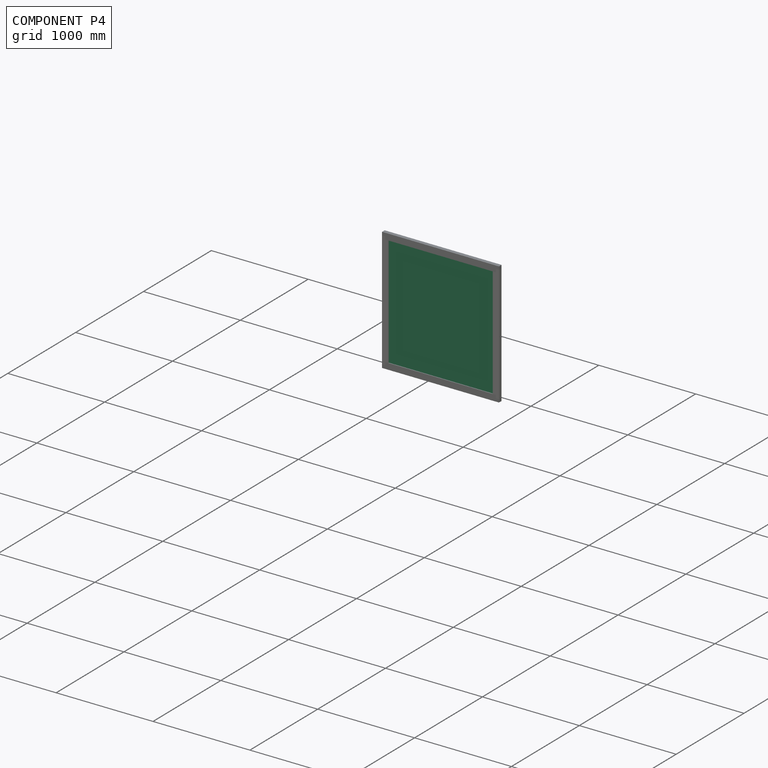
[diagram: component P4 — assembled]
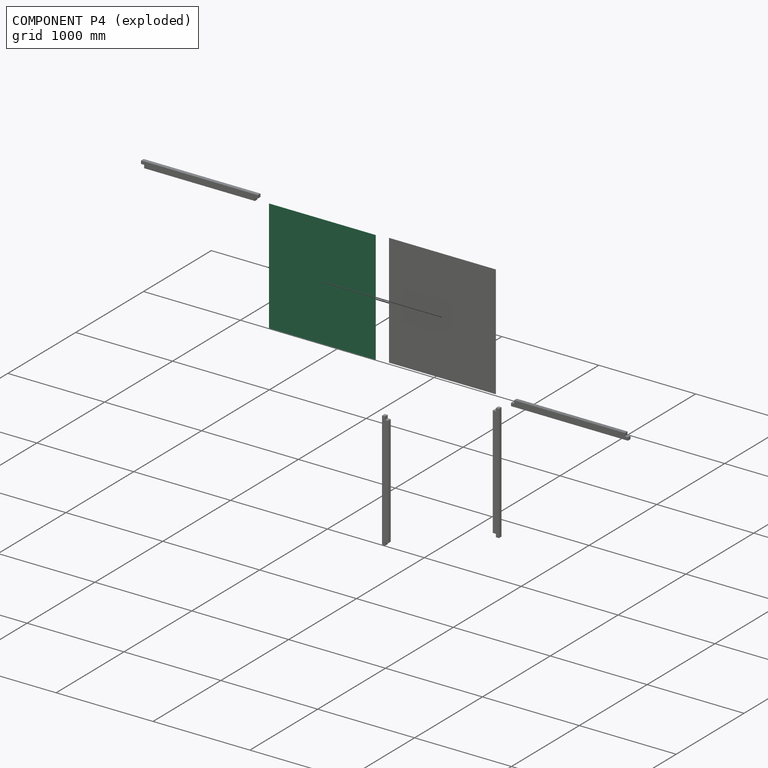
[diagram: component P4 — exploded]
COMPONENT P4 — recipe-attached (CADFS 00307407, mesh-verified: the recipe's output STEP matches this component's geometry to below the mesh-comparison resolution (tessellation chordal tolerance ~2.4 mm)).
Held by: PLANAR mate "Planar 11" to P7; PLANAR mate "Planar 13" to P10; PLANAR mate "Planar 15" to P8; PLANAR mate "Planar 13" to P10; PLANAR mate "Planar 15" to P8; PLANAR mate "Planar 11" to P7.
Construction recipe (FeatureScript — the CAD program that rebuilds this solid; sketch coordinates are in the units given by the * unit suffixes, e.g. mm):

FeatureScript 1511;
import(path : "onshape/std/geometry.fs", version : "1511.0");
import(path : "onshape/std/common.fs", version : "1511.0");
const mm = millimeter;
const VERTEX = EntityType.VERTEX;
const EDGE = EntityType.EDGE;
const FACE = EntityType.FACE;
const BODY = EntityType.BODY;
function v(x, y){return vector(x, y);}
function OD(order){return orderDisambiguation(order);}
function OSD(set){return originalSetDisambiguation(set);}
function TD(topology){return topologyDisambiguation(topology);}
function TDD(query){return trueDependencyDisambiguation(query);}
function sQuery(a, b, c) {return sketchEntityQuery(a, b, c);}

annotation { "Feature Type Name" : "Feature", "Feature Type Description" : "" }
export const myFeature = defineFeature(function(context is Context, id is Id, definition is map)
    precondition{}
    {
        {
            var Q0;
            Q0=qCreatedBy(makeId("Front.planeOp"),FACE);
            var sketch = newSketch(context, id + "F0", { "sketchPlane" : qUnion([Q0])});
            skLineSegment(sketch, "E0.bottom", {"start": v(581.66, 549.9) * mm, "end": v(-581.66, 549.9) * mm});
            skLineSegment(sketch, "E0.top", {"start": v(581.66, -549.9) * mm, "end": v(-581.66, -549.9) * mm});
            skLineSegment(sketch, "E0.left", {"start": v(581.66, 549.9) * mm, "end": v(581.66, -549.9) * mm});
            skLineSegment(sketch, "E0.right", {"start": v(-581.66, 549.9) * mm, "end": v(-581.66, -549.9) * mm});
            skPoint(sketch, "E0.middle", {"position": v(0, 0) * mm});
            skSolve(sketch);
        }
        {
            var Q0;
            Q0=qSketchRegion(id+"F0",true);
            extrude(context, id + "F1", {"entities" : qUnion([Q0]), "depth" : 3.17 * mm});
        }
    });
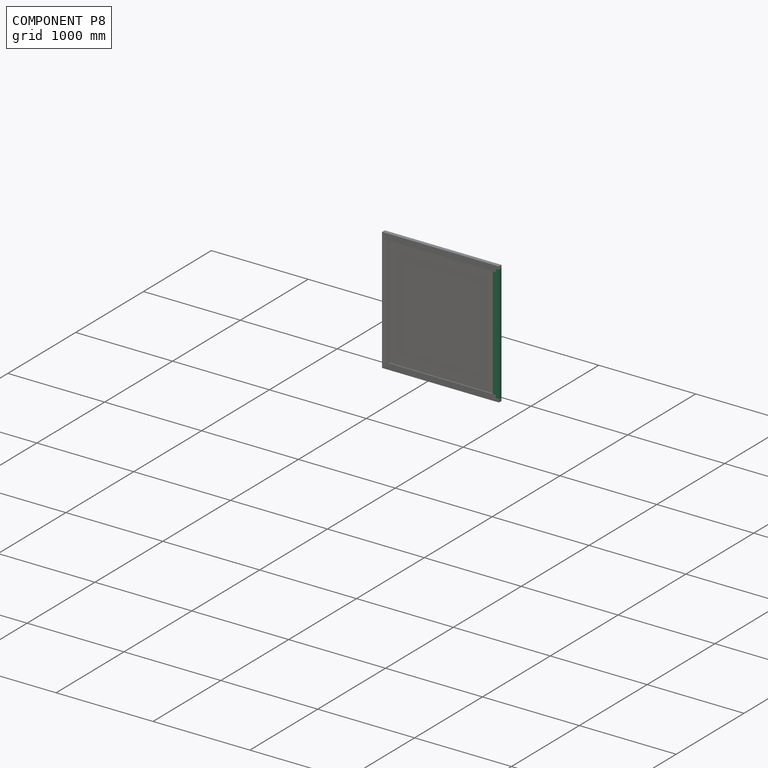
[diagram: component P8 — assembled]
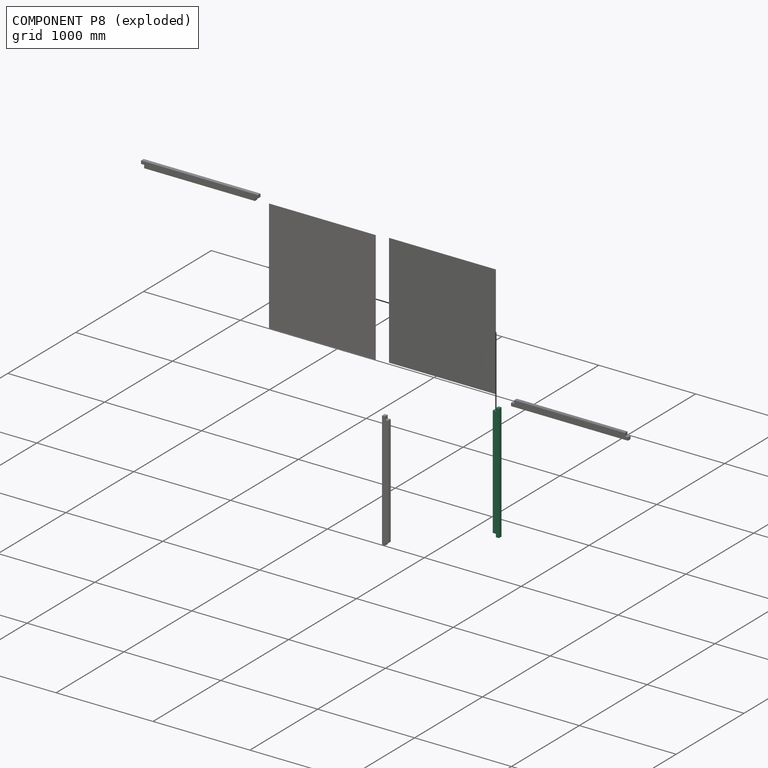
[diagram: component P8 — exploded]
COMPONENT P8 — recipe-attached (CADFS 00307400, mesh-verified: the recipe's output STEP matches this component's geometry to below the mesh-comparison resolution (tessellation chordal tolerance ~1.81 mm)).
Held by: PLANAR mate "Planar 4" to P13; PLANAR mate "Planar 6" to P13; PLANAR mate "Planar 3" to P9; PLANAR mate "Planar 14" to P7; PLANAR mate "Planar 15" to P4; PLANAR mate "Planar 5" to P13; PLANAR mate "Planar 1" to P9; PLANAR mate "Planar 2" to P9; PLANAR mate "Planar 1" to P9; PLANAR mate "Planar 15" to P4; PLANAR mate "Planar 3" to P9; PLANAR mate "Planar 5" to P13; PLANAR mate "Planar 6" to P13; PLANAR mate "Planar 4" to P13; PLANAR mate "Planar 14" to P7; PLANAR mate "Planar 2" to P9.
Construction recipe (FeatureScript — the CAD program that rebuilds this solid; sketch coordinates are in the units given by the * unit suffixes, e.g. mm):

FeatureScript 1511;
import(path : "onshape/std/geometry.fs", version : "1511.0");
import(path : "onshape/std/common.fs", version : "1511.0");
const mm = millimeter;
const VERTEX = EntityType.VERTEX;
const EDGE = EntityType.EDGE;
const FACE = EntityType.FACE;
const BODY = EntityType.BODY;
function v(x, y){return vector(x, y);}
function OD(order){return orderDisambiguation(order);}
function OSD(set){return originalSetDisambiguation(set);}
function TD(topology){return topologyDisambiguation(topology);}
function TDD(query){return trueDependencyDisambiguation(query);}
function sQuery(a, b, c) {return sketchEntityQuery(a, b, c);}

annotation { "Feature Type Name" : "Feature", "Feature Type Description" : "" }
export const myFeature = defineFeature(function(context is Context, id is Id, definition is map)
    precondition{}
    {
        {
            var Q0;
            Q0=qCreatedBy(makeId("Front.planeOp"),FACE);
            var sketch = newSketch(context, id + "F0", { "sketchPlane" : qUnion([Q0])});
            skLineSegment(sketch, "E0.bottom", {"start": v(19.05, -31.75) * mm, "end": v(-19.05, -31.75) * mm});
            skLineSegment(sketch, "E0.top", {"start": v(19.05, 31.75) * mm, "end": v(-19.05, 31.75) * mm});
            skLineSegment(sketch, "E0.left", {"start": v(19.05, -31.75) * mm, "end": v(19.05, 31.75) * mm});
            skLineSegment(sketch, "E0.right", {"start": v(-19.05, -31.75) * mm, "end": v(-19.05, 31.75) * mm});
            skPoint(sketch, "E0.middle", {"position": v(0, 0) * mm});
            skLineSegment(sketch, "E1.bottom", {"start": v(11.11, 21.59) * mm, "end": v(7.94, 21.59) * mm});
            skLineSegment(sketch, "E1.top", {"start": v(11.11, 31.75) * mm, "end": v(7.94, 31.75) * mm});
            skLineSegment(sketch, "E1.left", {"start": v(11.11, 21.59) * mm, "end": v(11.11, 31.75) * mm});
            skLineSegment(sketch, "E1.right", {"start": v(7.94, 21.59) * mm, "end": v(7.94, 31.75) * mm});
            skPoint(sketch, "E1.middle", {"position": v(9.53, 26.67) * mm});
            skLineSegment(sketch, "E2.bottom", {"start": v(-7.94, 21.59) * mm, "end": v(-11.11, 21.59) * mm});
            skLineSegment(sketch, "E2.top", {"start": v(-7.94, 31.75) * mm, "end": v(-11.11, 31.75) * mm});
            skLineSegment(sketch, "E2.left", {"start": v(-7.94, 21.59) * mm, "end": v(-7.94, 31.75) * mm});
            skLineSegment(sketch, "E2.right", {"start": v(-11.11, 21.59) * mm, "end": v(-11.11, 31.75) * mm});
            skPoint(sketch, "E2.middle", {"position": v(-9.53, 26.67) * mm});
            skSolve(sketch);
        }
        {
            var Q0;
            Q0=makeQuery(id+"F0.imprint","IMPRINT",FACE,{"disambiguationData":[TD([[makeQuery(id+"F0.imprint","IMPRINT",EDGE,{"derivedFrom":sQuery(id+"F0.wireOp",EDGE,"E0.bottom")}),-1.0]])]});
            extrude(context, id + "F1", {"entities" : qUnion([Q0]), "endBound" : BoundingType.SYMMETRIC, "depth" : 1206.5 * mm});
        }
        {
            var Q0;
            Q0=makeQuery(id+"F1.opExtrude","SWEPT_FACE",FACE,{"disambiguationData":[OSD([sQuery(id+"F0.wireOp",EDGE,"E0.right")])]});
            var sketch = newSketch(context, id + "F2", { "sketchPlane" : qUnion([Q0])});
            skLineSegment(sketch, "E3", {"start": v(0, 31.75) * mm, "end": v(0, -31.75) * mm, "construction": true});
            skPoint(sketch, "E3.endSnap0", {"position": v(0, -31.75) * mm});
            skLineSegment(sketch, "E4.bottom", {"start": v(603.25, 31.75) * mm, "end": v(571.5, 31.75) * mm});
            skLineSegment(sketch, "E4.top", {"start": v(603.25, 0) * mm, "end": v(571.5, 0) * mm});
            skLineSegment(sketch, "E4.left", {"start": v(603.25, 31.75) * mm, "end": v(603.25, 0) * mm});
            skLineSegment(sketch, "E4.right", {"start": v(571.5, 31.75) * mm, "end": v(571.5, 0) * mm});
            skLineSegment(sketch, "E5.MirrorCS", {"start": v(-603.25, 31.75) * mm, "end": v(-571.5, 31.75) * mm});
            skLineSegment(sketch, "E6.MirrorCS", {"start": v(-603.25, 0) * mm, "end": v(-571.5, 0) * mm});
            skLineSegment(sketch, "E7.MirrorCS", {"start": v(-603.25, 31.75) * mm, "end": v(-603.25, 0) * mm});
            skLineSegment(sketch, "E8.MirrorCS", {"start": v(-571.5, 31.75) * mm, "end": v(-571.5, 0) * mm});
            skSolve(sketch);
        }
        {
            var Q0;
            Q0 = qSketchRegion(id + "F2", true);
            extrude(context, id + "F3", {"entities" : qUnion([Q0]), "operationType" : NewBodyOperationType.REMOVE, "endBound" : BoundingType.THROUGH_ALL, "oppositeDirection" : true, "depth" : 25.4 * mm});
        }
    });
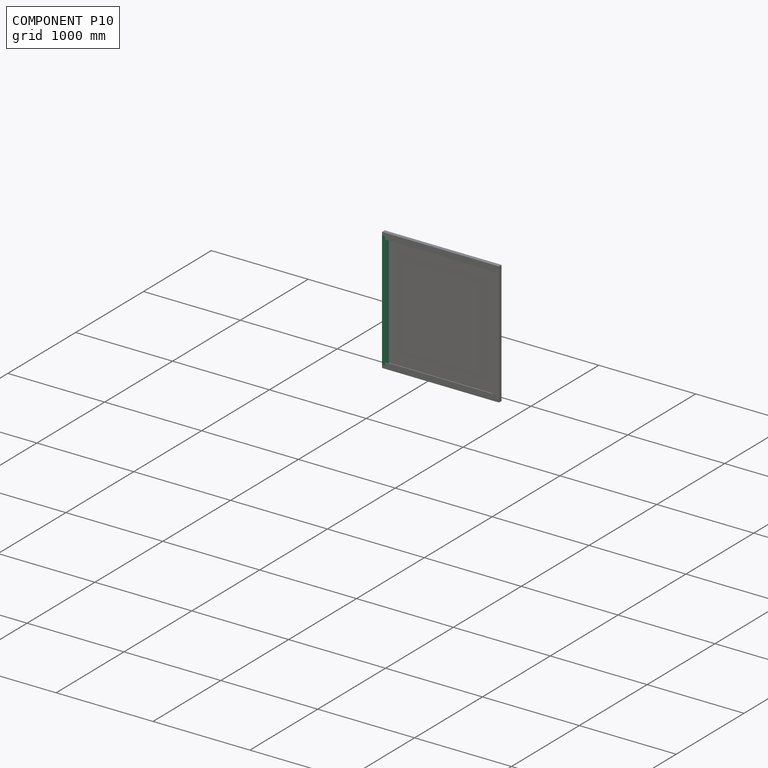
[diagram: component P10 — assembled]
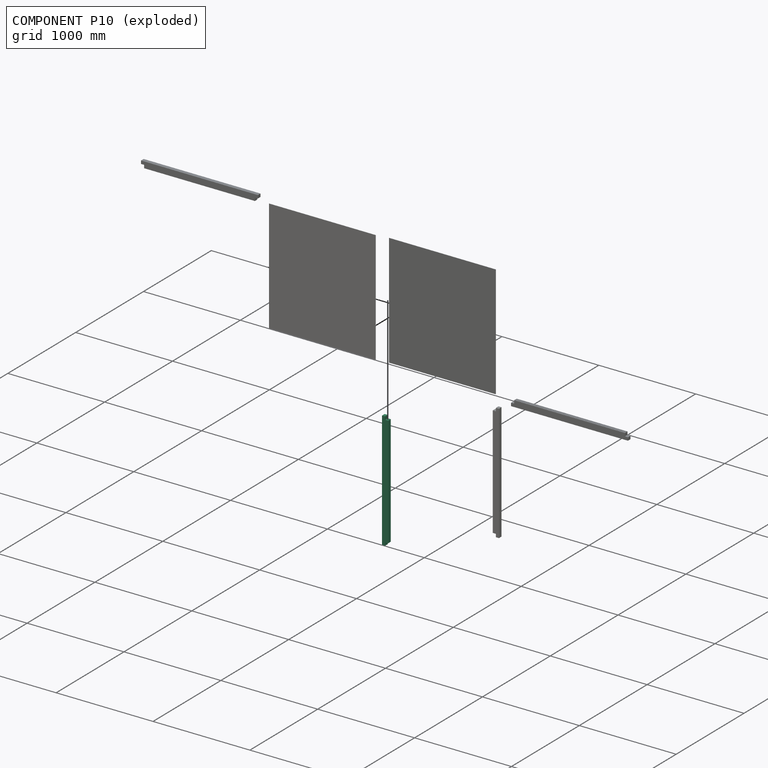
[diagram: component P10 — exploded]
COMPONENT P10 — recipe-attached (CADFS 00307400, mesh-verified: the recipe's output STEP matches this component's geometry to below the mesh-comparison resolution (tessellation chordal tolerance ~1.81 mm)).
Held by: PLANAR mate "Planar 13" to P4; PLANAR mate "Planar 7" to P13; PLANAR mate "Planar 12" to P7; PLANAR mate "Planar 8" to P9; PLANAR mate "Planar 9" to P13; PLANAR mate "Planar 7" to P13; PLANAR mate "Planar 9" to P13; PLANAR mate "Planar 13" to P4; PLANAR mate "Planar 8" to P9; PLANAR mate "Planar 12" to P7.
Construction recipe (FeatureScript — the CAD program that rebuilds this solid; sketch coordinates are in the units given by the * unit suffixes, e.g. mm):

FeatureScript 1511;
import(path : "onshape/std/geometry.fs", version : "1511.0");
import(path : "onshape/std/common.fs", version : "1511.0");
const mm = millimeter;
const VERTEX = EntityType.VERTEX;
const EDGE = EntityType.EDGE;
const FACE = EntityType.FACE;
const BODY = EntityType.BODY;
function v(x, y){return vector(x, y);}
function OD(order){return orderDisambiguation(order);}
function OSD(set){return originalSetDisambiguation(set);}
function TD(topology){return topologyDisambiguation(topology);}
function TDD(query){return trueDependencyDisambiguation(query);}
function sQuery(a, b, c) {return sketchEntityQuery(a, b, c);}

annotation { "Feature Type Name" : "Feature", "Feature Type Description" : "" }
export const myFeature = defineFeature(function(context is Context, id is Id, definition is map)
    precondition{}
    {
        {
            var Q0;
            Q0=qCreatedBy(makeId("Front.planeOp"),FACE);
            var sketch = newSketch(context, id + "F0", { "sketchPlane" : qUnion([Q0])});
            skLineSegment(sketch, "E0.bottom", {"start": v(19.05, -31.75) * mm, "end": v(-19.05, -31.75) * mm});
            skLineSegment(sketch, "E0.top", {"start": v(19.05, 31.75) * mm, "end": v(-19.05, 31.75) * mm});
            skLineSegment(sketch, "E0.left", {"start": v(19.05, -31.75) * mm, "end": v(19.05, 31.75) * mm});
            skLineSegment(sketch, "E0.right", {"start": v(-19.05, -31.75) * mm, "end": v(-19.05, 31.75) * mm});
            skPoint(sketch, "E0.middle", {"position": v(0, 0) * mm});
            skLineSegment(sketch, "E1.bottom", {"start": v(11.11, 21.59) * mm, "end": v(7.94, 21.59) * mm});
            skLineSegment(sketch, "E1.top", {"start": v(11.11, 31.75) * mm, "end": v(7.94, 31.75) * mm});
            skLineSegment(sketch, "E1.left", {"start": v(11.11, 21.59) * mm, "end": v(11.11, 31.75) * mm});
            skLineSegment(sketch, "E1.right", {"start": v(7.94, 21.59) * mm, "end": v(7.94, 31.75) * mm});
            skPoint(sketch, "E1.middle", {"position": v(9.53, 26.67) * mm});
            skLineSegment(sketch, "E2.bottom", {"start": v(-7.94, 21.59) * mm, "end": v(-11.11, 21.59) * mm});
            skLineSegment(sketch, "E2.top", {"start": v(-7.94, 31.75) * mm, "end": v(-11.11, 31.75) * mm});
            skLineSegment(sketch, "E2.left", {"start": v(-7.94, 21.59) * mm, "end": v(-7.94, 31.75) * mm});
            skLineSegment(sketch, "E2.right", {"start": v(-11.11, 21.59) * mm, "end": v(-11.11, 31.75) * mm});
            skPoint(sketch, "E2.middle", {"position": v(-9.53, 26.67) * mm});
            skSolve(sketch);
        }
        {
            var Q0;
            Q0=makeQuery(id+"F0.imprint","IMPRINT",FACE,{"disambiguationData":[TD([[makeQuery(id+"F0.imprint","IMPRINT",EDGE,{"derivedFrom":sQuery(id+"F0.wireOp",EDGE,"E0.bottom")}),-1.0]])]});
            extrude(context, id + "F1", {"entities" : qUnion([Q0]), "endBound" : BoundingType.SYMMETRIC, "depth" : 1206.5 * mm});
        }
        {
            var Q0;
            Q0=makeQuery(id+"F1.opExtrude","SWEPT_FACE",FACE,{"disambiguationData":[OSD([sQuery(id+"F0.wireOp",EDGE,"E0.right")])]});
            var sketch = newSketch(context, id + "F2", { "sketchPlane" : qUnion([Q0])});
            skLineSegment(sketch, "E3", {"start": v(0, 31.75) * mm, "end": v(0, -31.75) * mm, "construction": true});
            skPoint(sketch, "E3.endSnap0", {"position": v(0, -31.75) * mm});
            skLineSegment(sketch, "E4.bottom", {"start": v(603.25, 31.75) * mm, "end": v(571.5, 31.75) * mm});
            skLineSegment(sketch, "E4.top", {"start": v(603.25, 0) * mm, "end": v(571.5, 0) * mm});
            skLineSegment(sketch, "E4.left", {"start": v(603.25, 31.75) * mm, "end": v(603.25, 0) * mm});
            skLineSegment(sketch, "E4.right", {"start": v(571.5, 31.75) * mm, "end": v(571.5, 0) * mm});
            skLineSegment(sketch, "E5.MirrorCS", {"start": v(-603.25, 31.75) * mm, "end": v(-571.5, 31.75) * mm});
            skLineSegment(sketch, "E6.MirrorCS", {"start": v(-603.25, 0) * mm, "end": v(-571.5, 0) * mm});
            skLineSegment(sketch, "E7.MirrorCS", {"start": v(-603.25, 31.75) * mm, "end": v(-603.25, 0) * mm});
            skLineSegment(sketch, "E8.MirrorCS", {"start": v(-571.5, 31.75) * mm, "end": v(-571.5, 0) * mm});
            skSolve(sketch);
        }
        {
            var Q0;
            Q0 = qSketchRegion(id + "F2", true);
            extrude(context, id + "F3", {"entities" : qUnion([Q0]), "operationType" : NewBodyOperationType.REMOVE, "endBound" : BoundingType.THROUGH_ALL, "oppositeDirection" : true, "depth" : 25.4 * mm});
        }
    });
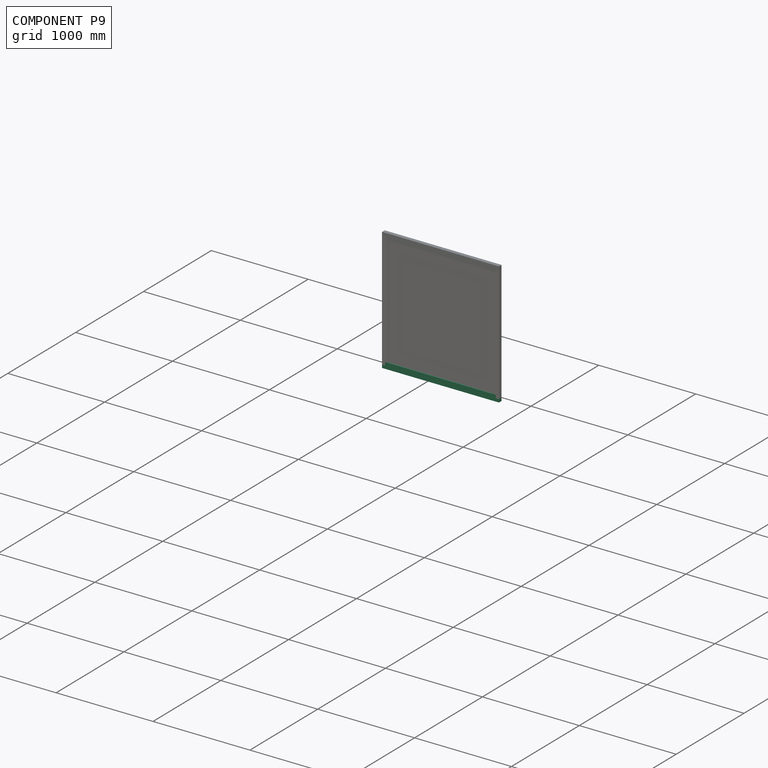
[diagram: component P9 — assembled]
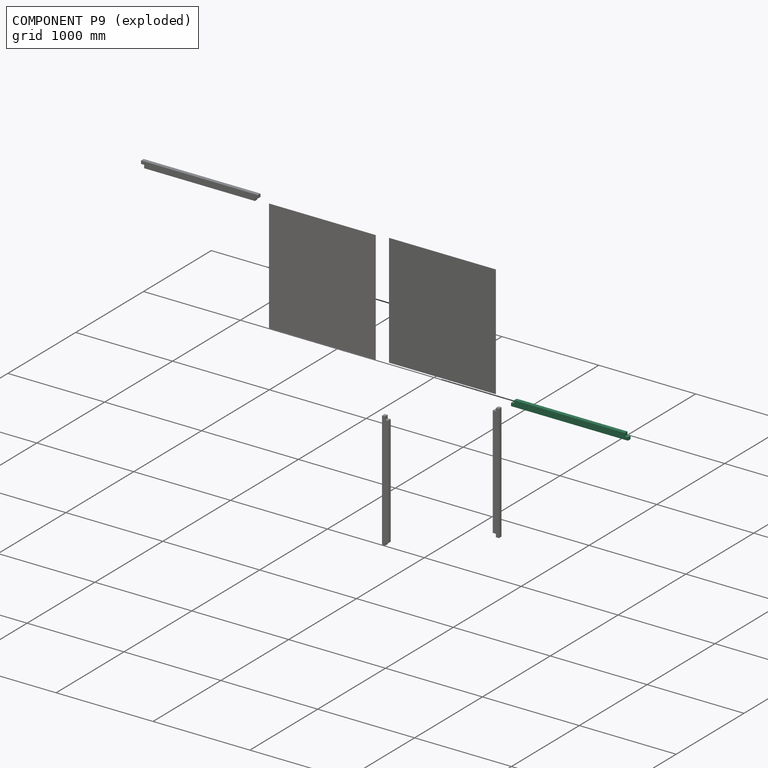
[diagram: component P9 — exploded]
COMPONENT P9 — recipe-attached (CADFS 00307400, mesh-verified: the recipe's output STEP matches this component's geometry to below the mesh-comparison resolution (tessellation chordal tolerance ~1.81 mm)).
Held by: PLANAR mate "Planar 3" to P8; PLANAR mate "Planar 8" to P10; PLANAR mate "Planar 1" to P8; PLANAR mate "Planar 2" to P8; PLANAR mate "Planar 1" to P8; PLANAR mate "Planar 3" to P8; PLANAR mate "Planar 8" to P10; PLANAR mate "Planar 2" to P8.
Construction recipe (FeatureScript — the CAD program that rebuilds this solid; sketch coordinates are in the units given by the * unit suffixes, e.g. mm):

FeatureScript 1511;
import(path : "onshape/std/geometry.fs", version : "1511.0");
import(path : "onshape/std/common.fs", version : "1511.0");
const mm = millimeter;
const VERTEX = EntityType.VERTEX;
const EDGE = EntityType.EDGE;
const FACE = EntityType.FACE;
const BODY = EntityType.BODY;
function v(x, y){return vector(x, y);}
function OD(order){return orderDisambiguation(order);}
function OSD(set){return originalSetDisambiguation(set);}
function TD(topology){return topologyDisambiguation(topology);}
function TDD(query){return trueDependencyDisambiguation(query);}
function sQuery(a, b, c) {return sketchEntityQuery(a, b, c);}

annotation { "Feature Type Name" : "Feature", "Feature Type Description" : "" }
export const myFeature = defineFeature(function(context is Context, id is Id, definition is map)
    precondition{}
    {
        {
            var Q0;
            Q0=qCreatedBy(makeId("Front.planeOp"),FACE);
            var sketch = newSketch(context, id + "F0", { "sketchPlane" : qUnion([Q0])});
            skLineSegment(sketch, "E0.bottom", {"start": v(19.05, -31.75) * mm, "end": v(-19.05, -31.75) * mm});
            skLineSegment(sketch, "E0.top", {"start": v(19.05, 31.75) * mm, "end": v(-19.05, 31.75) * mm});
            skLineSegment(sketch, "E0.left", {"start": v(19.05, -31.75) * mm, "end": v(19.05, 31.75) * mm});
            skLineSegment(sketch, "E0.right", {"start": v(-19.05, -31.75) * mm, "end": v(-19.05, 31.75) * mm});
            skPoint(sketch, "E0.middle", {"position": v(0, 0) * mm});
            skLineSegment(sketch, "E1.bottom", {"start": v(11.11, 21.59) * mm, "end": v(7.94, 21.59) * mm});
            skLineSegment(sketch, "E1.top", {"start": v(11.11, 31.75) * mm, "end": v(7.94, 31.75) * mm});
            skLineSegment(sketch, "E1.left", {"start": v(11.11, 21.59) * mm, "end": v(11.11, 31.75) * mm});
            skLineSegment(sketch, "E1.right", {"start": v(7.94, 21.59) * mm, "end": v(7.94, 31.75) * mm});
            skPoint(sketch, "E1.middle", {"position": v(9.53, 26.67) * mm});
            skLineSegment(sketch, "E2.bottom", {"start": v(-7.94, 21.59) * mm, "end": v(-11.11, 21.59) * mm});
            skLineSegment(sketch, "E2.top", {"start": v(-7.94, 31.75) * mm, "end": v(-11.11, 31.75) * mm});
            skLineSegment(sketch, "E2.left", {"start": v(-7.94, 21.59) * mm, "end": v(-7.94, 31.75) * mm});
            skLineSegment(sketch, "E2.right", {"start": v(-11.11, 21.59) * mm, "end": v(-11.11, 31.75) * mm});
            skPoint(sketch, "E2.middle", {"position": v(-9.53, 26.67) * mm});
            skSolve(sketch);
        }
        {
            var Q0;
            Q0=makeQuery(id+"F0.imprint","IMPRINT",FACE,{"disambiguationData":[TD([[makeQuery(id+"F0.imprint","IMPRINT",EDGE,{"derivedFrom":sQuery(id+"F0.wireOp",EDGE,"E0.bottom")}),-1.0]])]});
            extrude(context, id + "F1", {"entities" : qUnion([Q0]), "endBound" : BoundingType.SYMMETRIC, "depth" : 1206.5 * mm});
        }
        {
            var Q0;
            Q0=makeQuery(id+"F1.opExtrude","SWEPT_FACE",FACE,{"disambiguationData":[OSD([sQuery(id+"F0.wireOp",EDGE,"E0.right")])]});
            var sketch = newSketch(context, id + "F2", { "sketchPlane" : qUnion([Q0])});
            skLineSegment(sketch, "E3", {"start": v(0, 31.75) * mm, "end": v(0, -31.75) * mm, "construction": true});
            skPoint(sketch, "E3.endSnap0", {"position": v(0, -31.75) * mm});
            skLineSegment(sketch, "E4.bottom", {"start": v(603.25, 31.75) * mm, "end": v(571.5, 31.75) * mm});
            skLineSegment(sketch, "E4.top", {"start": v(603.25, 0) * mm, "end": v(571.5, 0) * mm});
            skLineSegment(sketch, "E4.left", {"start": v(603.25, 31.75) * mm, "end": v(603.25, 0) * mm});
            skLineSegment(sketch, "E4.right", {"start": v(571.5, 31.75) * mm, "end": v(571.5, 0) * mm});
            skLineSegment(sketch, "E5.MirrorCS", {"start": v(-603.25, 31.75) * mm, "end": v(-571.5, 31.75) * mm});
            skLineSegment(sketch, "E6.MirrorCS", {"start": v(-603.25, 0) * mm, "end": v(-571.5, 0) * mm});
            skLineSegment(sketch, "E7.MirrorCS", {"start": v(-603.25, 31.75) * mm, "end": v(-603.25, 0) * mm});
            skLineSegment(sketch, "E8.MirrorCS", {"start": v(-571.5, 31.75) * mm, "end": v(-571.5, 0) * mm});
            skSolve(sketch);
        }
        {
            var Q0;
            Q0 = qSketchRegion(id + "F2", true);
            extrude(context, id + "F3", {"entities" : qUnion([Q0]), "operationType" : NewBodyOperationType.REMOVE, "endBound" : BoundingType.THROUGH_ALL, "oppositeDirection" : true, "depth" : 25.4 * mm});
        }
    });
